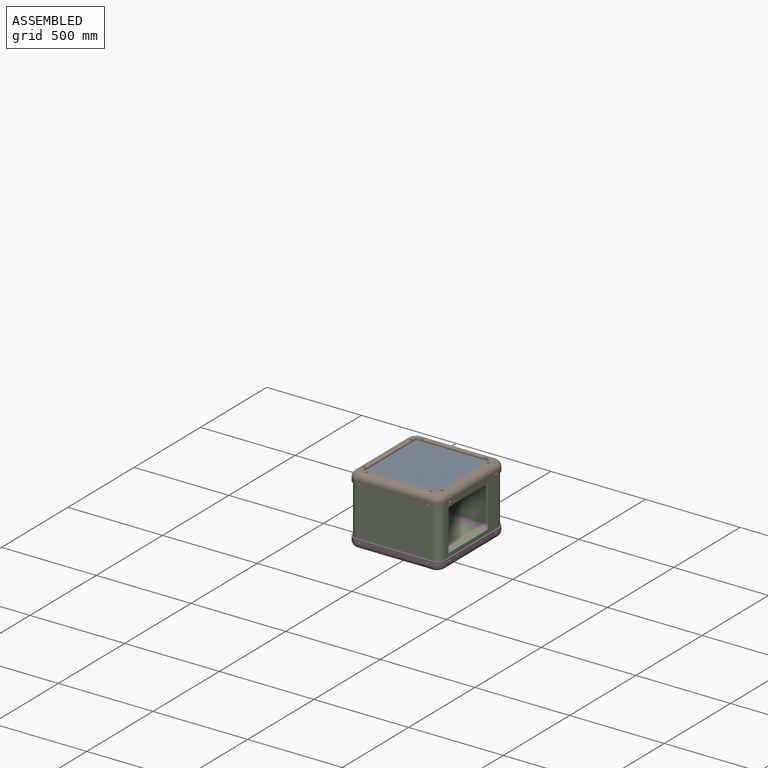
[diagram: assembled view]
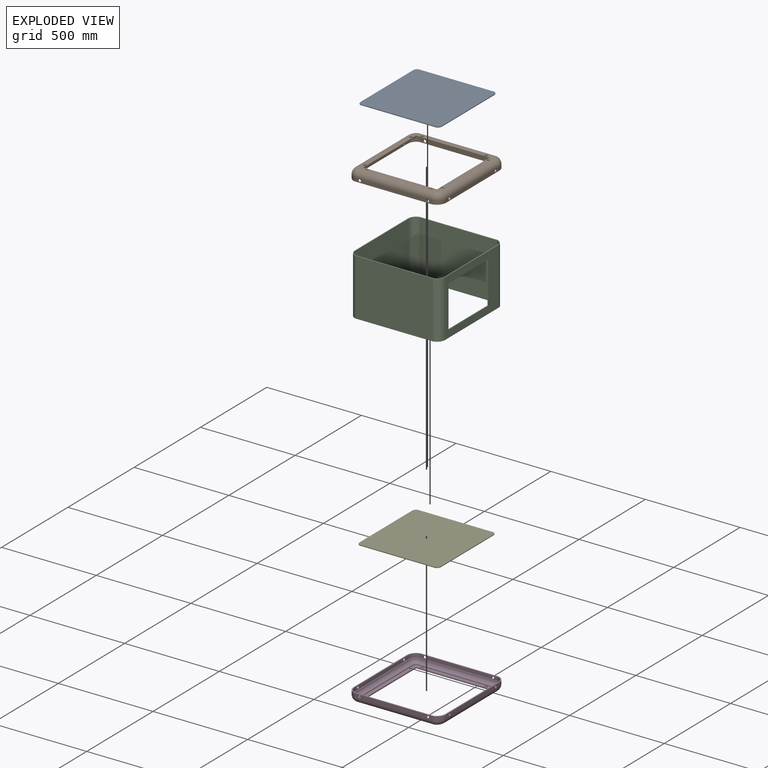
[diagram: exploded view]
GUIDED TOUR — MATED ASSEMBLY (Onshape document a875ecc7b04316eac6ff74b6, AutoMate assembly a875ecc7b04316eac6ff74b6_877d6b967d7ab32be90f1272_9d1d26521c327195952a089d_default)

This assembly has 5 components, labeled P0..P4 below (a component is one placed occurrence of a part; the same part can appear more than once), held together by 4 mates. A mate is a constraint between two components; its type names the relative motion it leaves free:
  BALL — leaves all rotation about the listed point free (a ball joint).
Axis/direction vectors are unit vectors and 'through' points are millimeter coordinates, both in the assembly's world frame.

MATES
  1. BALL "Ball 4": P4 <-> P3, direction (-1.000, 0.000, 0.000) through (888.63, 12.78, -93.40) mm
  2. BALL "Ball 2": P1 <-> P2, direction (0.000, 0.000, -1.000) through (1127.19, -206.03, 230.60) mm
  3. BALL "Ball 3": P0 <-> P1, direction (0.000, 0.000, -1.000) through (1083.19, -5.80, 252.60) mm
  4. BALL "Ball 1": P3 <-> P2, direction (0.000, 0.000, 1.000) through (650.07, -206.03, -69.40) mm

ASSEMBLY ORDER
  1. P4 — the base component [order verified]
  2. P3 [order verified]
  3. P2 [order verified]
  4. P1 [order verified]
  5. P0 [order verified]
(P0, P3 verified with a relaxed clearance tolerance: the source model stores slight part interference there.)
Order-tag legend:
  [order verified] — this step's position reverses a verified removal order: the component was checked to insert without passing through the ones already placed.

Of the 5 components, 3 carry the full construction recipe — the FeatureScript program that regenerates the part's solid from scratch; the rest are supplied as boundary geometry only.
Each toured component is shown spotlighted twice — in the assembled view, then in the exploded view, where a leader line traces a displaced component back to its assembled socket (saturated green if recipe-attached, orange if geometry-only; every other component desaturated gray) — followed by its recipe or geometry summary and the mates that hold it.
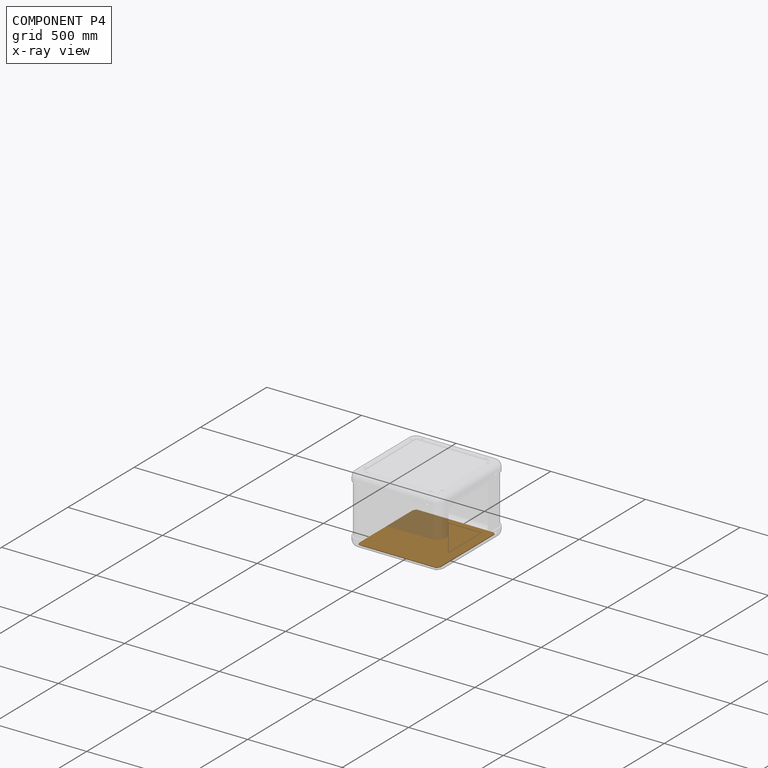
[diagram: component P4 — x-ray view]
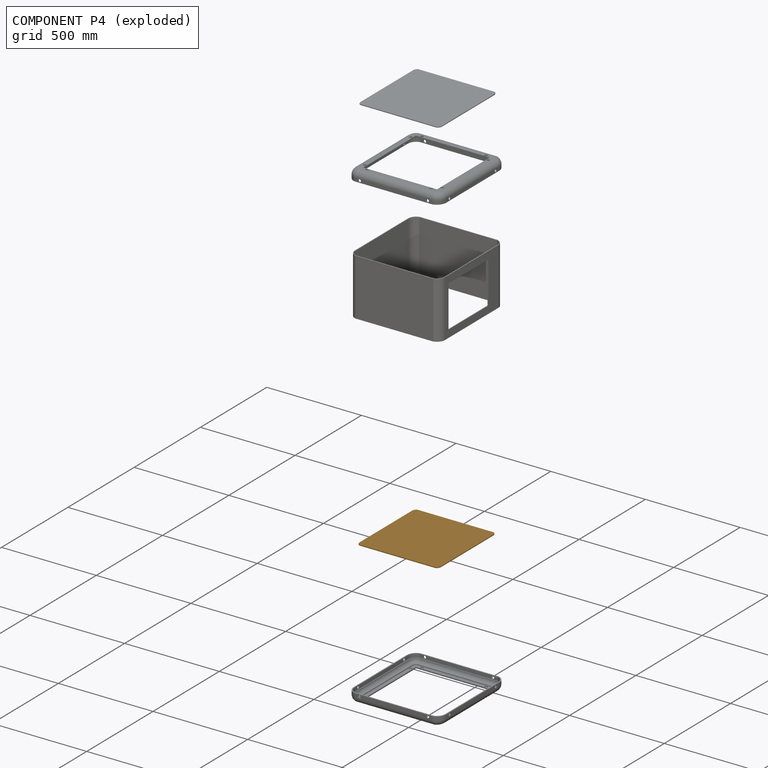
[diagram: component P4 — exploded]
COMPONENT P4 — geometry summary (no construction recipe available for this part):
  bounding box: 437.6 x 429.1 x 4.0 mm
  B-rep topology: 1 solid, 10 faces, 48 edges
  volume: 749993 mm^3 (100% of its bounding box)
  symmetry: 2-fold rotationally symmetric about the x axis; 2-fold rotationally symmetric about the y axis; 2-fold rotationally symmetric about the z axis; mirror-symmetric across its x mid-plane, y mid-plane, z mid-plane
Held by: BALL mate "Ball 4" to P3.
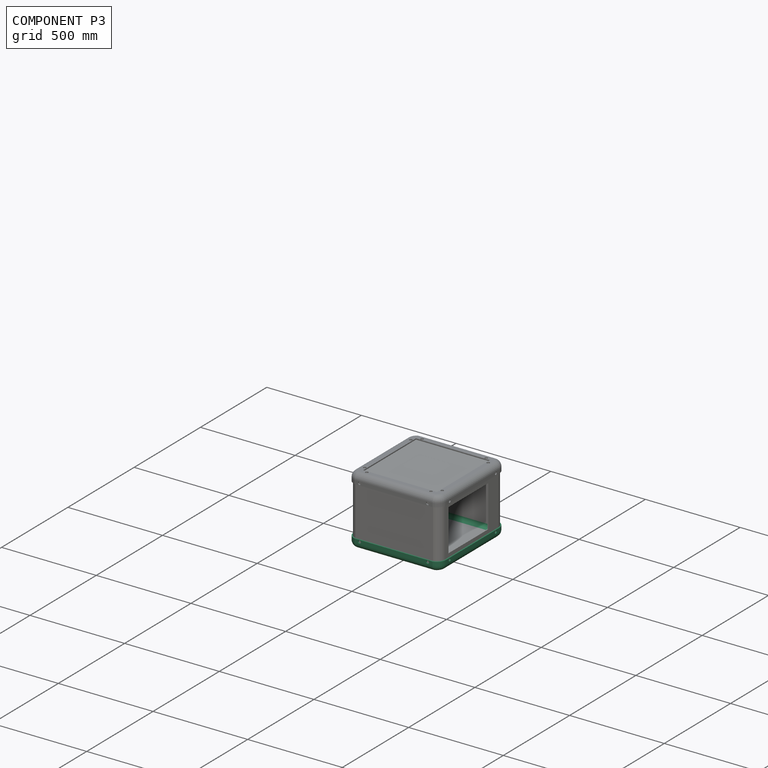
[diagram: component P3 — assembled]
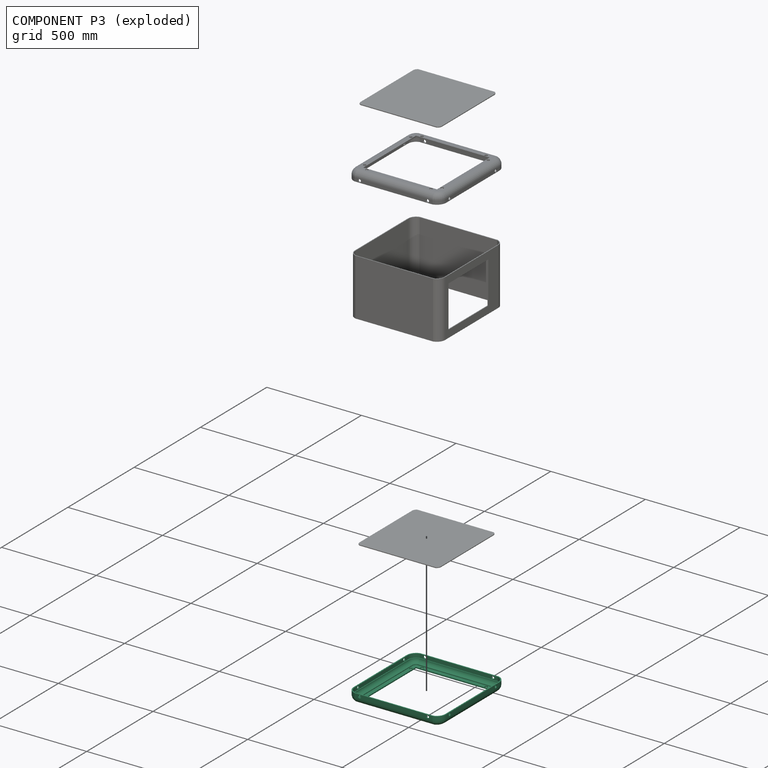
[diagram: component P3 — exploded]
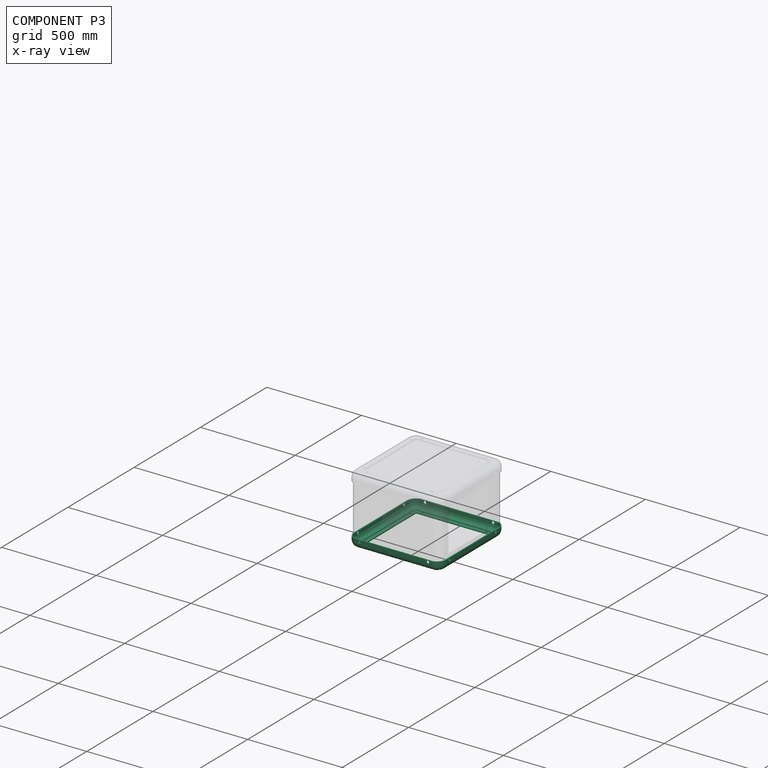
[diagram: component P3 — x-ray view]
COMPONENT P3 — same part as P1 (CADFS 00625966); its construction recipe is shown at P1.
Held by: BALL mate "Ball 4" to P4; BALL mate "Ball 1" to P2.
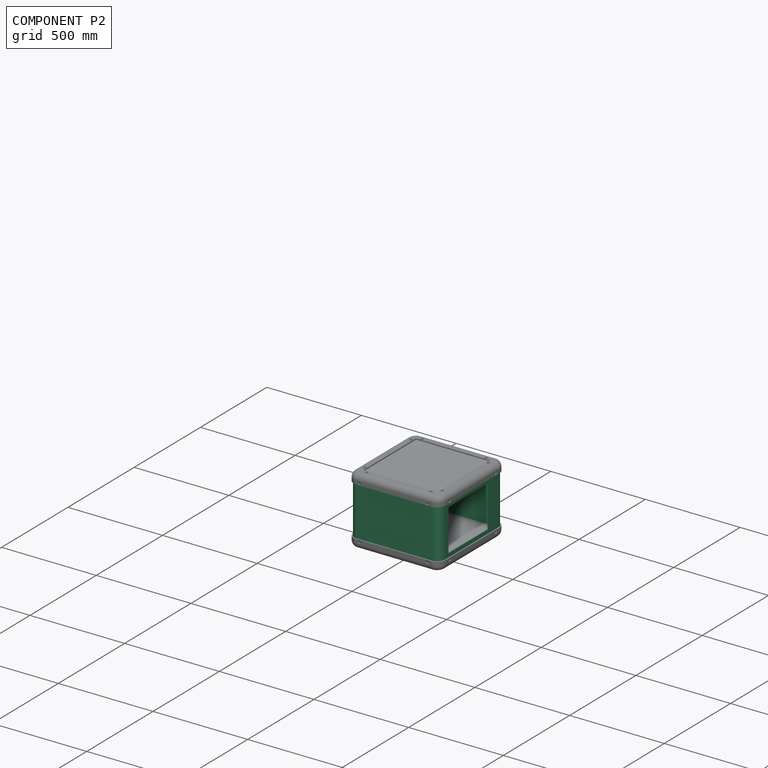
[diagram: component P2 — assembled]
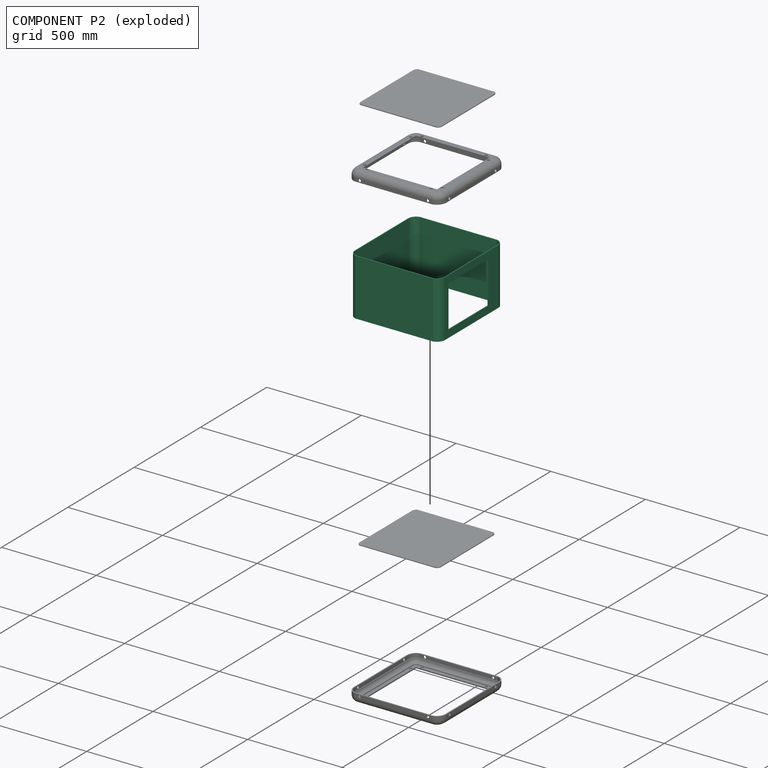
[diagram: component P2 — exploded]
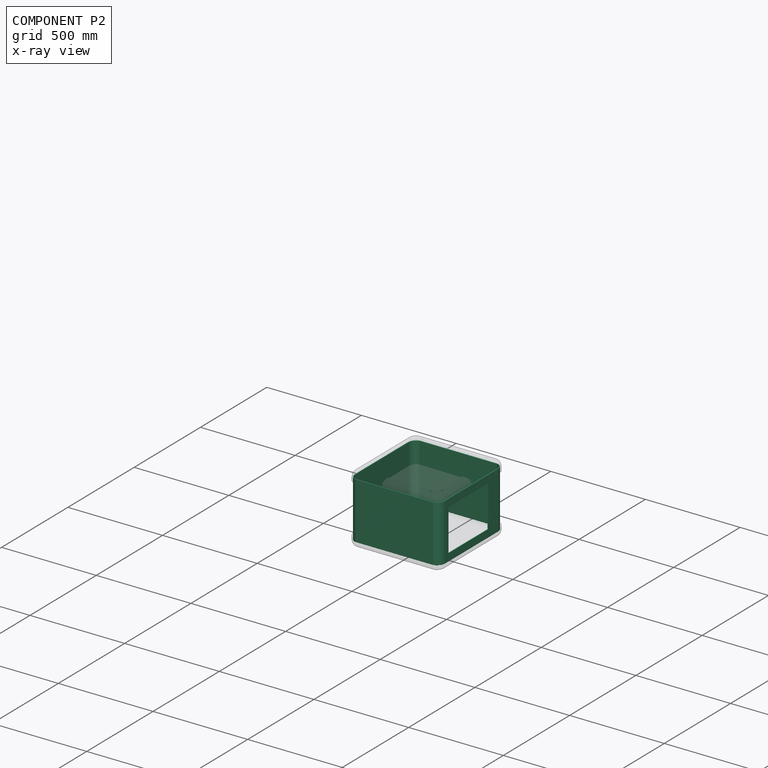
[diagram: component P2 — x-ray view]
COMPONENT P2 — recipe-attached (CADFS 00625968, mesh-verified: the recipe's output STEP matches this component's geometry to below the mesh-comparison resolution (tessellation chordal tolerance ~1.12 mm)).
Held by: BALL mate "Ball 2" to P1; BALL mate "Ball 1" to P3.
Construction recipe (FeatureScript — the CAD program that rebuilds this solid; sketch coordinates are in the units given by the * unit suffixes, e.g. mm):

FeatureScript 1511;
import(path : "onshape/std/geometry.fs", version : "1511.0");
import(path : "onshape/std/common.fs", version : "1511.0");
const mm = millimeter;
const VERTEX = EntityType.VERTEX;
const EDGE = EntityType.EDGE;
const FACE = EntityType.FACE;
const BODY = EntityType.BODY;
function v(x, y){return vector(x, y);}
function OD(order){return orderDisambiguation(order);}
function OSD(set){return originalSetDisambiguation(set);}
function TD(topology){return topologyDisambiguation(topology);}
function TDD(query){return trueDependencyDisambiguation(query);}
function sQuery(a, b, c) {return sketchEntityQuery(a, b, c);}

annotation { "Feature Type Name" : "Feature", "Feature Type Description" : "" }
export const myFeature = defineFeature(function(context is Context, id is Id, definition is map)
    precondition{}
    {
        {
            var Q0;
            Q0=qCreatedBy(makeId("Top.planeOp"),FACE);
            var sketch = newSketch(context, id + "F0", { "sketchPlane" : qUnion([Q0])});
            skLineSegment(sketch, "E0.bottom", {"start": v(-205.64, 242.8) * mm, "end": v(205.63, 242.8) * mm});
            skLineSegment(sketch, "E0.top", {"start": v(-205.64, -242.8) * mm, "end": v(205.63, -242.8) * mm});
            skLineSegment(sketch, "E0.left", {"start": v(-238.56, 200.23) * mm, "end": v(-238.56, -200.23) * mm});
            skLineSegment(sketch, "E0.right", {"start": v(238.56, 200.23) * mm, "end": v(238.56, -200.23) * mm});
            skLineSegment(sketch, "E1", {"start": v(-205.64, 242.8) * mm, "end": v(205.63, 242.8) * mm, "construction": true});
            skLineSegment(sketch, "E2", {"start": v(-238.56, 200.23) * mm, "end": v(-238.56, -200.23) * mm, "construction": true});
            skLineSegment(sketch, "E3.MirrorCS", {"start": v(238.56, 200.23) * mm, "end": v(238.56, -200.23) * mm, "construction": true});
            skLineSegment(sketch, "E4.MirrorCS", {"start": v(-205.64, -242.8) * mm, "end": v(205.63, -242.8) * mm, "construction": true});
            skArc(sketch, "E5", {"start": v(-205.64, 242.8) * mm, "mid": v(-229.37, 227.14) * mm, "end": v(-238.56, 200.23) * mm});
            skArc(sketch, "E6", {"start": v(238.56, 200.23) * mm, "mid": v(229.37, 227.14) * mm, "end": v(205.63, 242.8) * mm});
            skArc(sketch, "E7", {"start": v(-238.56, -200.23) * mm, "mid": v(-229.37, -227.14) * mm, "end": v(-205.64, -242.8) * mm});
            skArc(sketch, "E8", {"start": v(205.63, -242.8) * mm, "mid": v(229.37, -227.14) * mm, "end": v(238.56, -200.23) * mm});
            skPoint(sketch, "E9.orphan", {"position": v(-238.56, 242.8) * mm});
            skPoint(sketch, "E10.orphan", {"position": v(-238.56, -242.8) * mm});
            skSolve(sketch);
        }
        {
            var Q0;
            Q0=makeQuery(id+"F0.imprint","IMPRINT",FACE,{"disambiguationData":[TD([[makeQuery(id+"F0.imprint","IMPRINT",EDGE,{"derivedFrom":sQuery(id+"F0.wireOp",EDGE,"E0.bottom")}),-1.0]])]});
            extrude(context, id + "F1", {"entities" : qUnion([Q0]), "depth" : 300 * mm, "offsetDistance" : 25 * mm});
        }
        {
            var Q0;
            Q0=makeQuery(id+"F1.opExtrude","CAP_FACE",FACE,{"disambiguationData":[OSD([sQuery(id+"F0.wireOp",EDGE,"E0.bottom"),sQuery(id+"F0.wireOp",EDGE,"E0.top"),sQuery(id+"F0.wireOp",EDGE,"E0.left"),sQuery(id+"F0.wireOp",EDGE,"E0.right"),sQuery(id+"F0.wireOp",EDGE,"E5"),sQuery(id+"F0.wireOp",EDGE,"E6"),sQuery(id+"F0.wireOp",EDGE,"E7"),sQuery(id+"F0.wireOp",EDGE,"E8")])],"isStart":true});
            shell(context, id + "F2", {"entities" : qUnion([Q0]), "thickness" : 4 * mm});
        }
        {
            var Q0;
            Q0=makeQuery(id+"F2.opShell","OFFSET_FACE",FACE,{"disambiguationData":[OSD([sQuery(id+"F0.wireOp",EDGE,"E0.bottom"),sQuery(id+"F0.wireOp",EDGE,"E0.top"),sQuery(id+"F0.wireOp",EDGE,"E0.left"),sQuery(id+"F0.wireOp",EDGE,"E0.right"),sQuery(id+"F0.wireOp",EDGE,"E5"),sQuery(id+"F0.wireOp",EDGE,"E6"),sQuery(id+"F0.wireOp",EDGE,"E7"),sQuery(id+"F0.wireOp",EDGE,"E8")])]});
            var sketch = newSketch(context, id + "F3", { "sketchPlane" : qUnion([Q0])});
            skLineSegment(sketch, "E11", {"start": v(-234.56, 200.23) * mm, "end": v(-234.56, -200.23) * mm});
            skArc(sketch, "E12", {"start": v(-234.56, -200.23) * mm, "mid": v(-226.36, -224.5) * mm, "end": v(-205.11, -238.8) * mm});
            skLineSegment(sketch, "E13", {"start": v(-205.11, -238.8) * mm, "end": v(205.11, -238.8) * mm});
            skArc(sketch, "E14", {"start": v(205.11, -238.8) * mm, "mid": v(226.36, -224.5) * mm, "end": v(234.56, -200.23) * mm});
            skLineSegment(sketch, "E15", {"start": v(234.56, -200.23) * mm, "end": v(234.56, 200.23) * mm});
            skArc(sketch, "E16", {"start": v(234.56, 200.23) * mm, "mid": v(226.36, 224.5) * mm, "end": v(205.11, 238.8) * mm});
            skLineSegment(sketch, "E17", {"start": v(205.11, 238.8) * mm, "end": v(-205.11, 238.8) * mm});
            skArc(sketch, "E18", {"start": v(-205.11, 238.8) * mm, "mid": v(-226.36, 224.5) * mm, "end": v(-234.56, 200.23) * mm});
            skSolve(sketch);
        }
        {
            var Q0;
            Q0=makeQuery(id+"F3.imprint","IMPRINT",FACE,{"disambiguationData":[TD([[makeQuery(id+"F3.imprint","IMPRINT",EDGE,{"derivedFrom":sQuery(id+"F3.wireOp",EDGE,"E11")}),-1.0]])]});
            extrude(context, id + "F4", {"entities" : qUnion([Q0]), "operationType" : NewBodyOperationType.REMOVE, "oppositeDirection" : true, "depth" : 25 * mm, "offsetDistance" : 25 * mm});
        }
        {
            var Q0;
            Q0=makeQuery(id+"F1.opExtrude","SWEPT_FACE",FACE,{"disambiguationData":[OSD([sQuery(id+"F0.wireOp",EDGE,"E0.left")])]});
            var sketch = newSketch(context, id + "F5", { "sketchPlane" : qUnion([Q0])});
            skLineSegment(sketch, "E19.bottom", {"start": v(175.23, 40) * mm, "end": v(-124.77, 40) * mm});
            skLineSegment(sketch, "E19.top", {"start": v(175.23, 260) * mm, "end": v(-124.77, 260) * mm});
            skLineSegment(sketch, "E19.left", {"start": v(175.23, 40) * mm, "end": v(175.23, 260) * mm});
            skLineSegment(sketch, "E19.right", {"start": v(-124.77, 40) * mm, "end": v(-124.77, 260) * mm});
            skSolve(sketch);
        }
        {
            var Q0;
            Q0=makeQuery(id+"F5.imprint","IMPRINT",FACE,{"disambiguationData":[TD([[makeQuery(id+"F5.imprint","IMPRINT",EDGE,{"derivedFrom":sQuery(id+"F5.wireOp",EDGE,"E19.bottom")}),-1.0]])]});
            extrude(context, id + "F6", {"entities" : qUnion([Q0]), "operationType" : NewBodyOperationType.REMOVE, "oppositeDirection" : true, "depth" : 25 * mm, "offsetDistance" : 25 * mm});
        }
    });
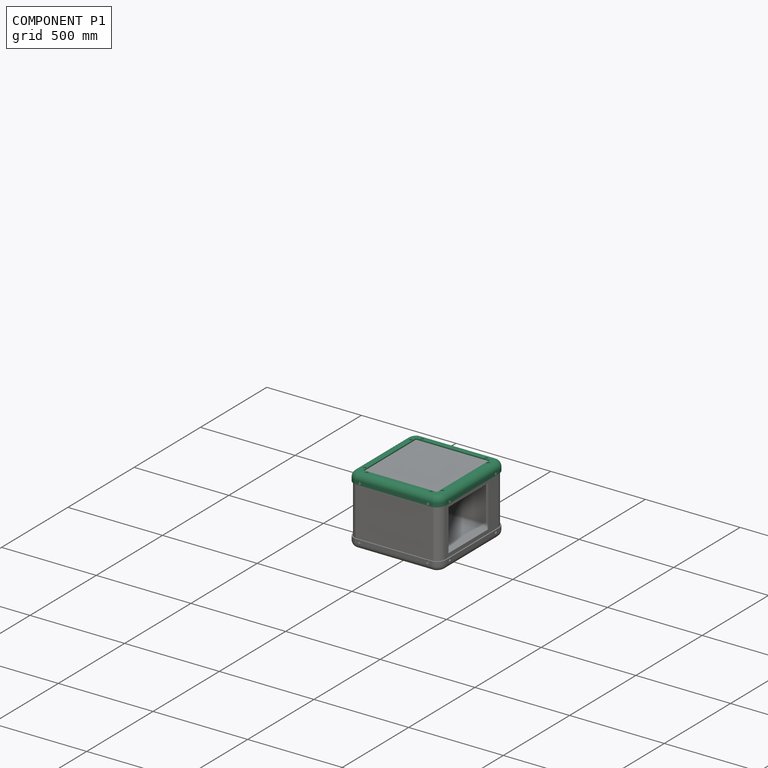
[diagram: component P1 — assembled]
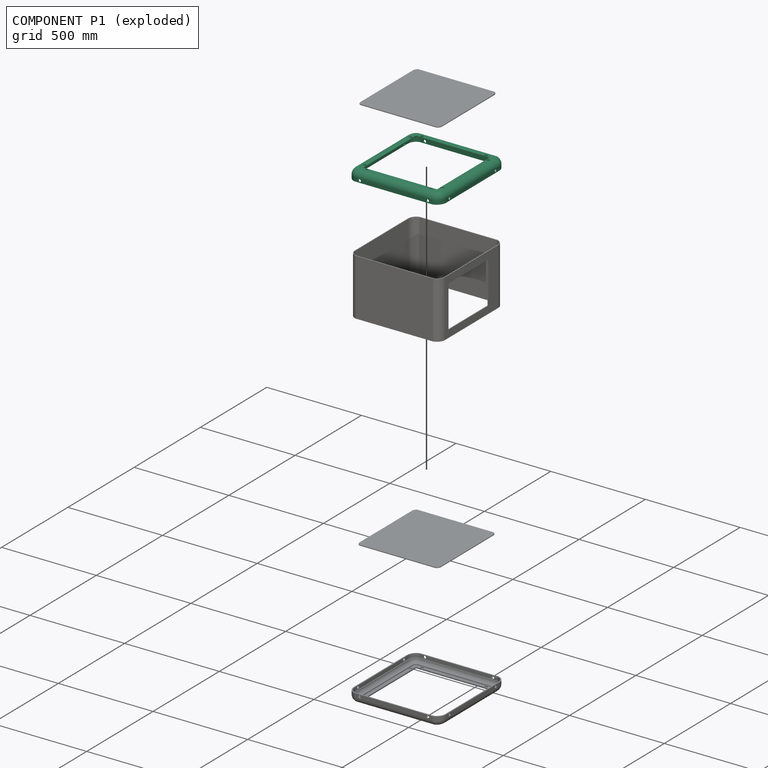
[diagram: component P1 — exploded]
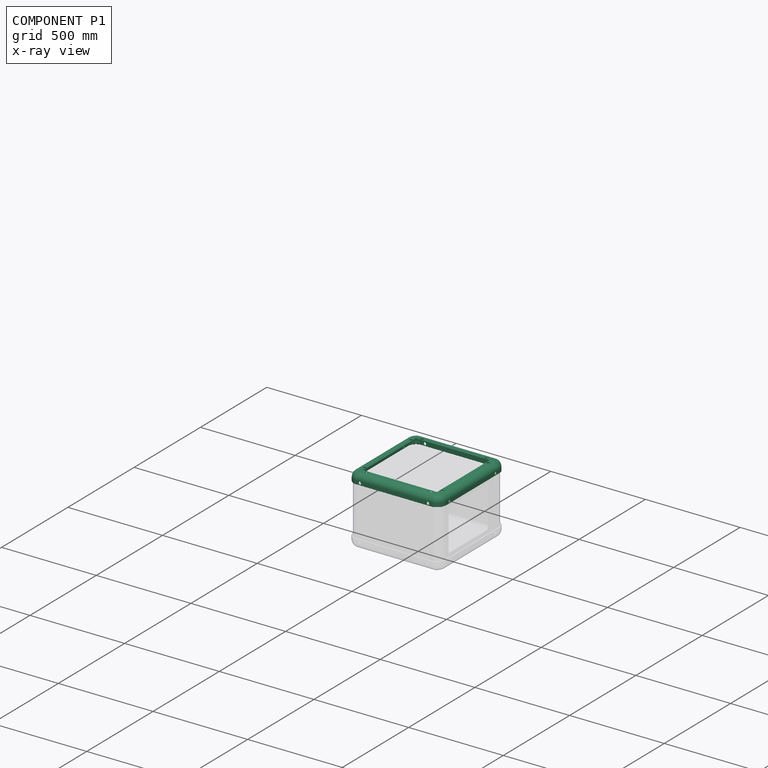
[diagram: component P1 — x-ray view]
COMPONENT P1 — recipe-attached (CADFS 00625966, mesh-verified: the recipe's output STEP matches this component's geometry to below the mesh-comparison resolution (tessellation chordal tolerance ~1.05 mm)).
Held by: BALL mate "Ball 2" to P2; BALL mate "Ball 3" to P0.
Construction recipe (FeatureScript — the CAD program that rebuilds this solid; sketch coordinates are in the units given by the * unit suffixes, e.g. mm):

FeatureScript 1511;
import(path : "onshape/std/geometry.fs", version : "1511.0");
import(path : "onshape/std/common.fs", version : "1511.0");
const mm = millimeter;
const VERTEX = EntityType.VERTEX;
const EDGE = EntityType.EDGE;
const FACE = EntityType.FACE;
const BODY = EntityType.BODY;
function v(x, y){return vector(x, y);}
function OD(order){return orderDisambiguation(order);}
function OSD(set){return originalSetDisambiguation(set);}
function TD(topology){return topologyDisambiguation(topology);}
function TDD(query){return trueDependencyDisambiguation(query);}
function sQuery(a, b, c) {return sketchEntityQuery(a, b, c);}

annotation { "Feature Type Name" : "Feature", "Feature Type Description" : "" }
export const myFeature = defineFeature(function(context is Context, id is Id, definition is map)
    precondition{}
    {
        {
            var Q0;
            Q0=qCreatedBy(makeId("Right.planeOp"),FACE);
            var sketch = newSketch(context, id + "F0", { "sketchPlane" : qUnion([Q0])});
            skLineSegment(sketch, "E0.bottom", {"start": v(-6, 0) * mm, "end": v(0, 0) * mm});
            skLineSegment(sketch, "E0.left", {"start": v(0, 0) * mm, "end": v(0, 20) * mm});
            skLineSegment(sketch, "E1.top", {"start": v(-30, 50) * mm, "end": v(-50, 50) * mm});
            skLineSegment(sketch, "E1.right", {"start": v(-50, 44) * mm, "end": v(-50, 50) * mm});
            skPoint(sketch, "E2.visualSharp", {"position": v(-10, 40) * mm});
            skArc(sketch, "E3", {"start": v(-10, 20) * mm, "mid": v(-15.86, 34.14) * mm, "end": v(-30, 40) * mm});
            skArc(sketch, "E4", {"start": v(0, 20) * mm, "mid": v(-8.79, 41.21) * mm, "end": v(-30, 50) * mm});
            skLineSegment(sketch, "E5.top", {"start": v(-50, 44) * mm, "end": v(-30, 44) * mm});
            skLineSegment(sketch, "E5.right", {"start": v(-30, 40) * mm, "end": v(-30, 44) * mm});
            skLineSegment(sketch, "E6.top", {"start": v(-10, 20) * mm, "end": v(-6, 20) * mm});
            skLineSegment(sketch, "E6.right", {"start": v(-6, 0) * mm, "end": v(-6, 20) * mm});
            skSolve(sketch);
        }
        {
            var Q0;
            Q0=qCreatedBy(makeId("Top.planeOp"),FACE);
            var sketch = newSketch(context, id + "F1", { "sketchPlane" : qUnion([Q0])});
            skLineSegment(sketch, "E7", {"start": v(0, 0) * mm, "end": v(200.23, 0) * mm});
            skLineSegment(sketch, "E8", {"start": v(248.8, -115.56) * mm, "end": v(248.8, -38.18) * mm});
            skArc(sketch, "E9", {"start": v(248.8, -38.18) * mm, "mid": v(231.12, -10.69) * mm, "end": v(200.23, 0) * mm});
            skSolve(sketch);
        }
        {
            var Q0;
            Q0=makeQuery(id+"F0.imprint","IMPRINT",FACE,{"disambiguationData":[TD([[makeQuery(id+"F0.imprint","IMPRINT",EDGE,{"derivedFrom":sQuery(id+"F0.wireOp",EDGE,"E0.bottom")}),1.0]])]});
            var Q1;
            Q1=sQuery(id+"F1.wireOp",EDGE,"E7");
            var Q2;
            Q2=sQuery(id+"F1.wireOp",EDGE,"E9");
            var Q3;
            Q3=sQuery(id+"F1.wireOp",EDGE,"E8");
            sweep(context, id + "F2", {"profiles" : qUnion([Q0]), "path" : qUnion([Q1, Q2, Q3])});
        }
        {
            var Q0;
            Q0=makeQuery(id+"F2.opSweep","SWEPT_BODY",BODY,{"disambiguationData":[OSD([sQuery(id+"F0.wireOp",EDGE,"E0.bottom"),sQuery(id+"F0.wireOp",EDGE,"E0.left"),sQuery(id+"F0.wireOp",EDGE,"E0.right"),sQuery(id+"F0.wireOp",EDGE,"E1.bottom"),sQuery(id+"F0.wireOp",EDGE,"E1.top"),sQuery(id+"F0.wireOp",EDGE,"E1.right"),sQuery(id+"F0.wireOp",EDGE,"E3"),sQuery(id+"F0.wireOp",EDGE,"E4"),sQuery(id+"F1.wireOp",EDGE,"E8")])]});
            var Q1;
            Q1=qCreatedBy(makeId("Right.planeOp"),FACE);
            mirror(context, id + "F3", {"operationType" : NewBodyOperationType.ADD, "entities" : qUnion([Q0]), "mirrorPlane" : qUnion([Q1])});
        }
        {
            var Q0;
            Q0=makeQuery(id+"F3.opPattern","COPY",FACE,{"derivedFrom":makeQuery(id+"F2.opSweep","CAP_FACE",FACE,{"disambiguationData":[OSD([sQuery(id+"F0.wireOp",EDGE,"E0.bottom"),sQuery(id+"F0.wireOp",EDGE,"E0.left"),sQuery(id+"F0.wireOp",EDGE,"E0.right"),sQuery(id+"F0.wireOp",EDGE,"E1.bottom"),sQuery(id+"F0.wireOp",EDGE,"E1.top"),sQuery(id+"F0.wireOp",EDGE,"E1.right"),sQuery(id+"F0.wireOp",EDGE,"E3"),sQuery(id+"F0.wireOp",EDGE,"E4"),sQuery(id+"F1.wireOp",VERTEX,"E8.start")])],"isStart":false}),"instanceName":"1"});
            extrude(context, id + "F4", {"entities" : qUnion([Q0]), "operationType" : NewBodyOperationType.ADD, "depth" : 129 * mm, "offsetDistance" : 25 * mm});
        }
        {
            var Q0;
            Q0=makeQuery(id+"F2.opSweep","SWEPT_BODY",BODY,{"disambiguationData":[OSD([sQuery(id+"F0.wireOp",EDGE,"E0.bottom"),sQuery(id+"F0.wireOp",EDGE,"E0.left"),sQuery(id+"F0.wireOp",EDGE,"E0.right"),sQuery(id+"F0.wireOp",EDGE,"E1.bottom"),sQuery(id+"F0.wireOp",EDGE,"E1.top"),sQuery(id+"F0.wireOp",EDGE,"E1.right"),sQuery(id+"F0.wireOp",EDGE,"E3"),sQuery(id+"F0.wireOp",EDGE,"E4"),sQuery(id+"F1.wireOp",EDGE,"E8")])]});
            var Q1;
            Q1=qCreatedBy(makeId("Right.planeOp"),FACE);
            mirror(context, id + "F5", {"operationType" : NewBodyOperationType.ADD, "entities" : qUnion([Q0]), "mirrorPlane" : qUnion([Q1])});
        }
        {
            var Q0;
            Q0=makeQuery(id+"F4.opExtrude","CAP_FACE",FACE,{"disambiguationData":[OSD([sQuery(id+"F0.wireOp",EDGE,"E0.bottom"),sQuery(id+"F0.wireOp",EDGE,"E0.left"),sQuery(id+"F0.wireOp",EDGE,"E0.right"),sQuery(id+"F0.wireOp",EDGE,"E1.bottom"),sQuery(id+"F0.wireOp",EDGE,"E1.top"),sQuery(id+"F0.wireOp",EDGE,"E1.right"),sQuery(id+"F0.wireOp",EDGE,"E3"),sQuery(id+"F0.wireOp",EDGE,"E4"),sQuery(id+"F1.wireOp",VERTEX,"E8.start")])],"isStart":false});
            cPlane(context, id + "F6", {"entities" : qUnion([Q0]), "cplaneType" : CPlaneType.OFFSET, "offset" : 0 * mm, "oppositeDirection" : true, "width" : 150 * mm, "height" : 150 * mm});
        }
        {
            var Q0;
            Q0=makeQuery(id+"F2.opSweep","SWEPT_BODY",BODY,{"disambiguationData":[OSD([sQuery(id+"F0.wireOp",EDGE,"E0.bottom"),sQuery(id+"F0.wireOp",EDGE,"E0.left"),sQuery(id+"F0.wireOp",EDGE,"E0.right"),sQuery(id+"F0.wireOp",EDGE,"E1.bottom"),sQuery(id+"F0.wireOp",EDGE,"E1.top"),sQuery(id+"F0.wireOp",EDGE,"E1.right"),sQuery(id+"F0.wireOp",EDGE,"E3"),sQuery(id+"F0.wireOp",EDGE,"E4"),sQuery(id+"F1.wireOp",EDGE,"E8")])]});
            var Q1;
            Q1=qCreatedBy(id+"F6.planeOp",FACE);
            mirror(context, id + "F7", {"operationType" : NewBodyOperationType.ADD, "entities" : qUnion([Q0]), "mirrorPlane" : qUnion([Q1])});
        }
        {
            var Q0;
            {var subQ0=sQuery(id+"F0.wireOp",EDGE,"E1.top");var subQ1=makeQuery(id+"F2.opSweep","SWEPT_FACE",FACE,{"disambiguationData":[OSD([subQ0,sQuery(id+"F1.wireOp",EDGE,"E7")])]});var subQ2=makeQuery(id+"F4.boolean.opBoolean","MERGE",FACE,{"derivedFrom":[makeQuery(id+"F3.boolean.opBoolean","MERGE",FACE,{"derivedFrom":[subQ1,makeQuery(id+"F3.opPattern","COPY",FACE,{"derivedFrom":subQ1,"instanceName":"1"})]}),makeQuery(id+"F4.opExtrude","SWEPT_FACE",FACE,{"disambiguationData":[OSD([subQ0,sQuery(id+"F1.wireOp",VERTEX,"E8.start")])]})]});var subQ3=makeQuery(id+"F5.boolean.opBoolean","MERGE",FACE,{"derivedFrom":[subQ2,makeQuery(id+"F5.opPattern","COPY",FACE,{"derivedFrom":subQ2,"instanceName":"1"})]});Q0=makeQuery(id+"F7.boolean.opBoolean","MERGE",FACE,{"derivedFrom":[subQ3,makeQuery(id+"F7.opPattern","COPY",FACE,{"derivedFrom":subQ3,"instanceName":"1"})]});}
            var sketch = newSketch(context, id + "F8", { "sketchPlane" : qUnion([Q0])});
            skCircle(sketch, "E10", {"center": v(-173.8, -40) * mm, "radius": 7.4 * mm});
            skLineSegment(sketch, "E11", {"start": v(-191.13, -30) * mm, "end": v(-160.39, -30) * mm, "construction": true});
            skLineSegment(sketch, "E12", {"start": v(-188.28, -50) * mm, "end": v(-161.95, -50) * mm, "construction": true});
            skLineSegment(sketch, "E13", {"start": v(-218.8, -42.6) * mm, "end": v(-218.8, -59.38) * mm, "construction": true});
            skLineSegment(sketch, "E14", {"start": v(-198.8, -50) * mm, "end": v(198.8, -439.12) * mm, "construction": true});
            skCircle(sketch, "E15.MirrorC", {"center": v(-208.27, -75.21) * mm, "radius": 7.4 * mm});
            skLineSegment(sketch, "E16", {"start": v(198.8, -50) * mm, "end": v(-198.8, -439.12) * mm, "construction": true});
            skLineSegment(sketch, "E17", {"start": v(0, -244.56) * mm, "end": v(0, -50) * mm, "construction": true});
            skCircle(sketch, "E18.MirrorC", {"center": v(173.8, -40) * mm, "radius": 7.4 * mm});
            skCircle(sketch, "E19.MirrorC", {"center": v(208.27, -75.21) * mm, "radius": 7.4 * mm});
            skLineSegment(sketch, "E20", {"start": v(0, -244.56) * mm, "end": v(-198.8, -244.56) * mm, "construction": true});
            skCircle(sketch, "E21.MirrorC", {"center": v(-173.8, -449.12) * mm, "radius": 7.4 * mm});
            skCircle(sketch, "E22.MirrorC", {"center": v(-208.27, -413.9) * mm, "radius": 7.4 * mm});
            skCircle(sketch, "E23.MirrorC", {"center": v(208.27, -413.9) * mm, "radius": 7.4 * mm});
            skCircle(sketch, "E24.MirrorC", {"center": v(173.8, -449.12) * mm, "radius": 7.4 * mm});
            skSolve(sketch);
        }
        {
            var Q0;
            Q0=sQuery(id+"F8.wireOp",VERTEX,"E15.MirrorC.center");
            var Q1;
            Q1=sQuery(id+"F8.wireOp",VERTEX,"E10.center");
            var Q2;
            Q2=sQuery(id+"F8.wireOp",VERTEX,"E18.MirrorC.center");
            var Q3;
            Q3=sQuery(id+"F8.wireOp",VERTEX,"E19.MirrorC.center");
            var Q4;
            Q4=sQuery(id+"F8.wireOp",VERTEX,"E22.MirrorC.center");
            var Q5;
            Q5=sQuery(id+"F8.wireOp",VERTEX,"E21.MirrorC.center");
            var Q6;
            Q6=sQuery(id+"F8.wireOp",VERTEX,"E24.MirrorC.center");
            var Q7;
            Q7=sQuery(id+"F8.wireOp",VERTEX,"E23.MirrorC.center");
            var Q8;
            Q8=makeQuery(id+"F2.opSweep","SWEPT_BODY",BODY,{"disambiguationData":[OSD([sQuery(id+"F0.wireOp",EDGE,"E0.bottom"),sQuery(id+"F0.wireOp",EDGE,"E0.left"),sQuery(id+"F0.wireOp",EDGE,"E1.top"),sQuery(id+"F0.wireOp",EDGE,"E1.right"),sQuery(id+"F0.wireOp",EDGE,"E3"),sQuery(id+"F0.wireOp",EDGE,"E4"),sQuery(id+"F0.wireOp",EDGE,"E5.top"),sQuery(id+"F0.wireOp",EDGE,"E5.right"),sQuery(id+"F0.wireOp",EDGE,"E6.top"),sQuery(id+"F0.wireOp",EDGE,"E6.right"),sQuery(id+"F1.wireOp",EDGE,"E8")])]});
            hole(context, id + "F9", {"style" : HoleStyle.SIMPLE, "endStyle" : HoleEndStyle.THROUGH, "holeDiameter" : 15 * mm, "majorDiameter" : 5 * mm, "isTappedThrough" : true, "tappedDepth" : 12 * mm, "tapClearance" : 3, "locations" : qUnion([Q0, Q1, Q2, Q3, Q4, Q5, Q6, Q7]), "scope" : qUnion([Q8])});
        }
        {
            var Q0;
            {var subQ0=makeQuery(id+"F2.opSweep","SWEPT_FACE",FACE,{"disambiguationData":[OSD([sQuery(id+"F0.wireOp",EDGE,"E0.left"),sQuery(id+"F1.wireOp",EDGE,"E7")])]});Q0=makeQuery(id+"F3.boolean.opBoolean","MERGE",FACE,{"derivedFrom":[subQ0,makeQuery(id+"F3.opPattern","COPY",FACE,{"derivedFrom":subQ0,"instanceName":"1"})]});}
            var sketch = newSketch(context, id + "F10", { "sketchPlane" : qUnion([Q0])});
            skLineSegment(sketch, "E25", {"start": v(-200.23, 20) * mm, "end": v(-145.16, 20) * mm, "construction": true});
            skLineSegment(sketch, "E26", {"start": v(-200.23, 0) * mm, "end": v(-141.48, 0) * mm, "construction": true});
            skCircle(sketch, "E27", {"center": v(-173.8, 10) * mm, "radius": 6.72 * mm});
            skCircle(sketch, "E28.MirrorC", {"center": v(173.8, 10) * mm, "radius": 6.72 * mm});
            skSolve(sketch);
        }
        {
            var Q0;
            Q0=sQuery(id+"F10.wireOp",VERTEX,"E27.center");
            var Q1;
            Q1=sQuery(id+"F10.wireOp",VERTEX,"E28.MirrorC.center");
            var Q2;
            Q2=makeQuery(id+"F2.opSweep","SWEPT_BODY",BODY,{"disambiguationData":[OSD([sQuery(id+"F0.wireOp",EDGE,"E0.bottom"),sQuery(id+"F0.wireOp",EDGE,"E0.left"),sQuery(id+"F0.wireOp",EDGE,"E1.top"),sQuery(id+"F0.wireOp",EDGE,"E1.right"),sQuery(id+"F0.wireOp",EDGE,"E3"),sQuery(id+"F0.wireOp",EDGE,"E4"),sQuery(id+"F0.wireOp",EDGE,"E5.top"),sQuery(id+"F0.wireOp",EDGE,"E5.right"),sQuery(id+"F0.wireOp",EDGE,"E6.top"),sQuery(id+"F0.wireOp",EDGE,"E6.right"),sQuery(id+"F1.wireOp",EDGE,"E8")])]});
            hole(context, id + "F11", {"style" : HoleStyle.SIMPLE, "endStyle" : HoleEndStyle.THROUGH, "holeDiameter" : 15 * mm, "majorDiameter" : 5 * mm, "isTappedThrough" : true, "tappedDepth" : 12 * mm, "tapClearance" : 3, "locations" : qUnion([Q0, Q1]), "scope" : qUnion([Q2])});
        }
        {
            var Q0;
            {var subQ0=sQuery(id+"F0.wireOp",EDGE,"E0.left");var subQ1=makeQuery(id+"F4.boolean.opBoolean","MERGE",FACE,{"derivedFrom":[makeQuery(id+"F3.opPattern","COPY",FACE,{"derivedFrom":makeQuery(id+"F2.opSweep","SWEPT_FACE",FACE,{"disambiguationData":[OSD([subQ0,sQuery(id+"F1.wireOp",EDGE,"E8")])]}),"instanceName":"1"}),makeQuery(id+"F4.opExtrude","SWEPT_FACE",FACE,{"disambiguationData":[OSD([subQ0,sQuery(id+"F1.wireOp",VERTEX,"E8.start")])]})]});Q0=makeQuery(id+"F7.boolean.opBoolean","MERGE",FACE,{"derivedFrom":[subQ1,makeQuery(id+"F7.opPattern","COPY",FACE,{"derivedFrom":subQ1,"instanceName":"1"})]});}
            var sketch = newSketch(context, id + "F12", { "sketchPlane" : qUnion([Q0])});
            skLineSegment(sketch, "E29", {"start": v(38.18, 20) * mm, "end": v(85.84, 20) * mm, "construction": true});
            skLineSegment(sketch, "E30", {"start": v(38.18, 0) * mm, "end": v(87.85, 0) * mm, "construction": true});
            skCircle(sketch, "E31", {"center": v(64.6, 10) * mm, "radius": 7.64 * mm});
            skCircle(sketch, "E32.MirrorC", {"center": v(424.52, 10) * mm, "radius": 7.64 * mm});
            skSolve(sketch);
        }
        {
            var Q0;
            Q0=sQuery(id+"F12.wireOp",VERTEX,"E31.center");
            var Q1;
            Q1=sQuery(id+"F12.wireOp",VERTEX,"E32.MirrorC.center");
            var Q2;
            Q2=makeQuery(id+"F2.opSweep","SWEPT_BODY",BODY,{"disambiguationData":[OSD([sQuery(id+"F0.wireOp",EDGE,"E0.bottom"),sQuery(id+"F0.wireOp",EDGE,"E0.left"),sQuery(id+"F0.wireOp",EDGE,"E1.top"),sQuery(id+"F0.wireOp",EDGE,"E1.right"),sQuery(id+"F0.wireOp",EDGE,"E3"),sQuery(id+"F0.wireOp",EDGE,"E4"),sQuery(id+"F0.wireOp",EDGE,"E5.top"),sQuery(id+"F0.wireOp",EDGE,"E5.right"),sQuery(id+"F0.wireOp",EDGE,"E6.top"),sQuery(id+"F0.wireOp",EDGE,"E6.right"),sQuery(id+"F1.wireOp",EDGE,"E8")])]});
            hole(context, id + "F13", {"style" : HoleStyle.SIMPLE, "endStyle" : HoleEndStyle.THROUGH, "holeDiameter" : 15 * mm, "majorDiameter" : 5 * mm, "isTappedThrough" : true, "tappedDepth" : 12 * mm, "tapClearance" : 3, "locations" : qUnion([Q0, Q1]), "scope" : qUnion([Q2])});
        }
    });
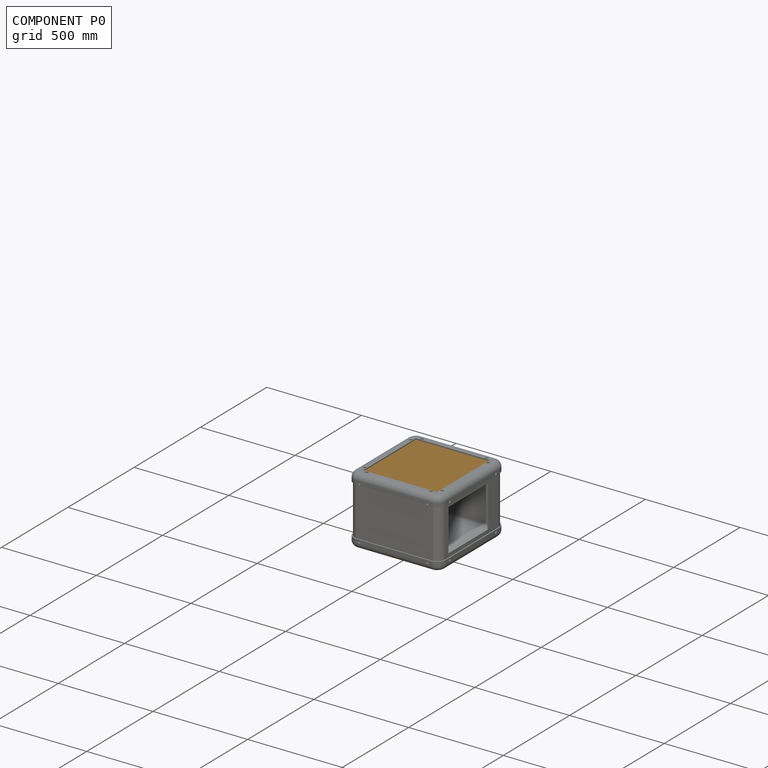
[diagram: component P0 — assembled]
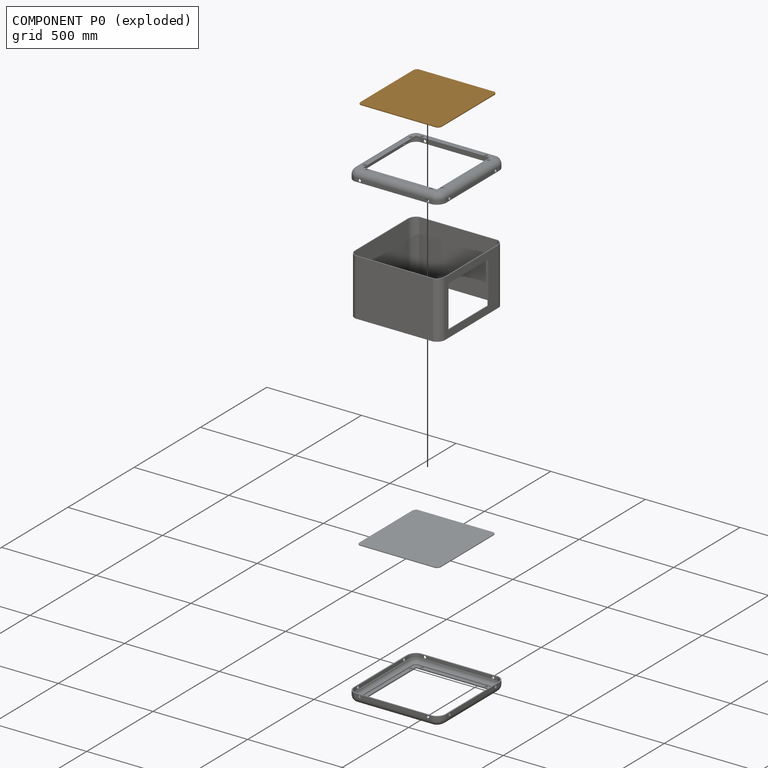
[diagram: component P0 — exploded]
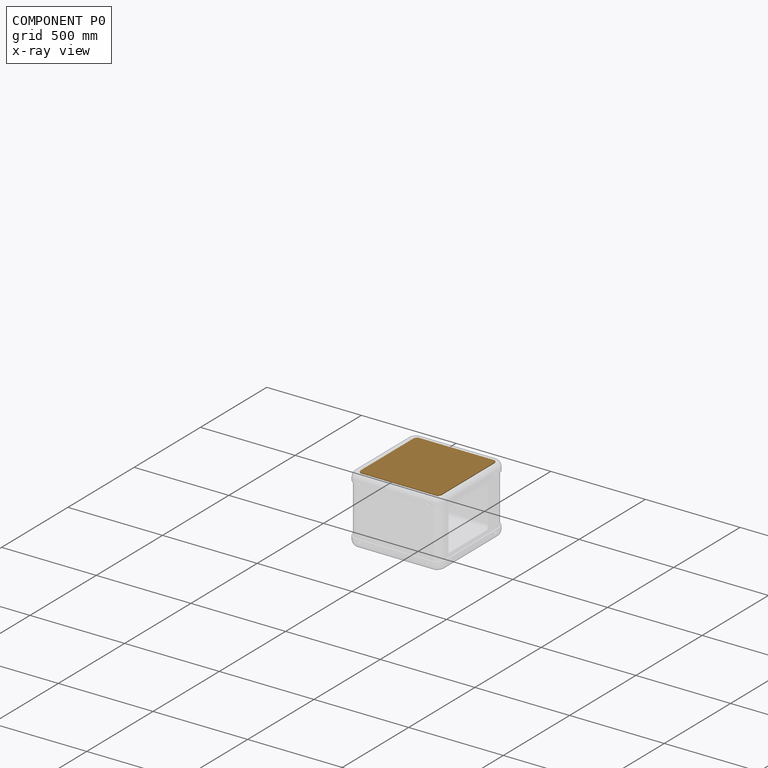
[diagram: component P0 — x-ray view]
COMPONENT P0 — geometry summary (no construction recipe available for this part):
  bounding box: 437.6 x 429.1 x 4.0 mm
  B-rep topology: 1 solid, 10 faces, 48 edges
  volume: 749993 mm^3 (100% of its bounding box)
  symmetry: 2-fold rotationally symmetric about the x axis; 2-fold rotationally symmetric about the y axis; 2-fold rotationally symmetric about the z axis; mirror-symmetric across its x mid-plane, y mid-plane, z mid-plane
Held by: BALL mate "Ball 3" to P1.
PROVENANCE & LICENSES
Assembly (occurrences, transforms, mates, per-part STEP geometry): AutoMate dataset, Zenodo record 7776208, CC0.
Construction recipes: CADFS (HuggingFace VladPyatov/CADFS, CC-BY-4.0, layered over the ABC dataset), FeatureScript reconstruction programs keyed by ABC model id.
Join: ABC meta listings map ABC model id -> Onshape documentId; within a shared document, parts are matched by geometric signature (bounding-box dims + volume at 0.1% relative tolerance, exact B-rep face/solid counts).
Verification: 3 of this assembly's 5 components carry a recipe attachment, and every attachment is mesh-verified: the CADFS STEP and the AutoMate member STEP were compared as meshes in their shared local frame (symmetric sampled-point-to-mesh distance); worst across the 3 attachments: below the mesh-comparison resolution (tessellation chordal tolerance ~1.12 mm) on a 744 mm part.
Renders: orthographic iso camera (az 35 / el 25); the floor grid conveys scale (grid pitch printed in each image; no ruler). In the exploded view each component is displaced by its stored offset vector: the offsets alone carry the explosion direction (mate normal/axis signs are not orientation cues and do not encode it), and separation distances are assigned per mate-chain, not proportionally to assembly-order depth.
